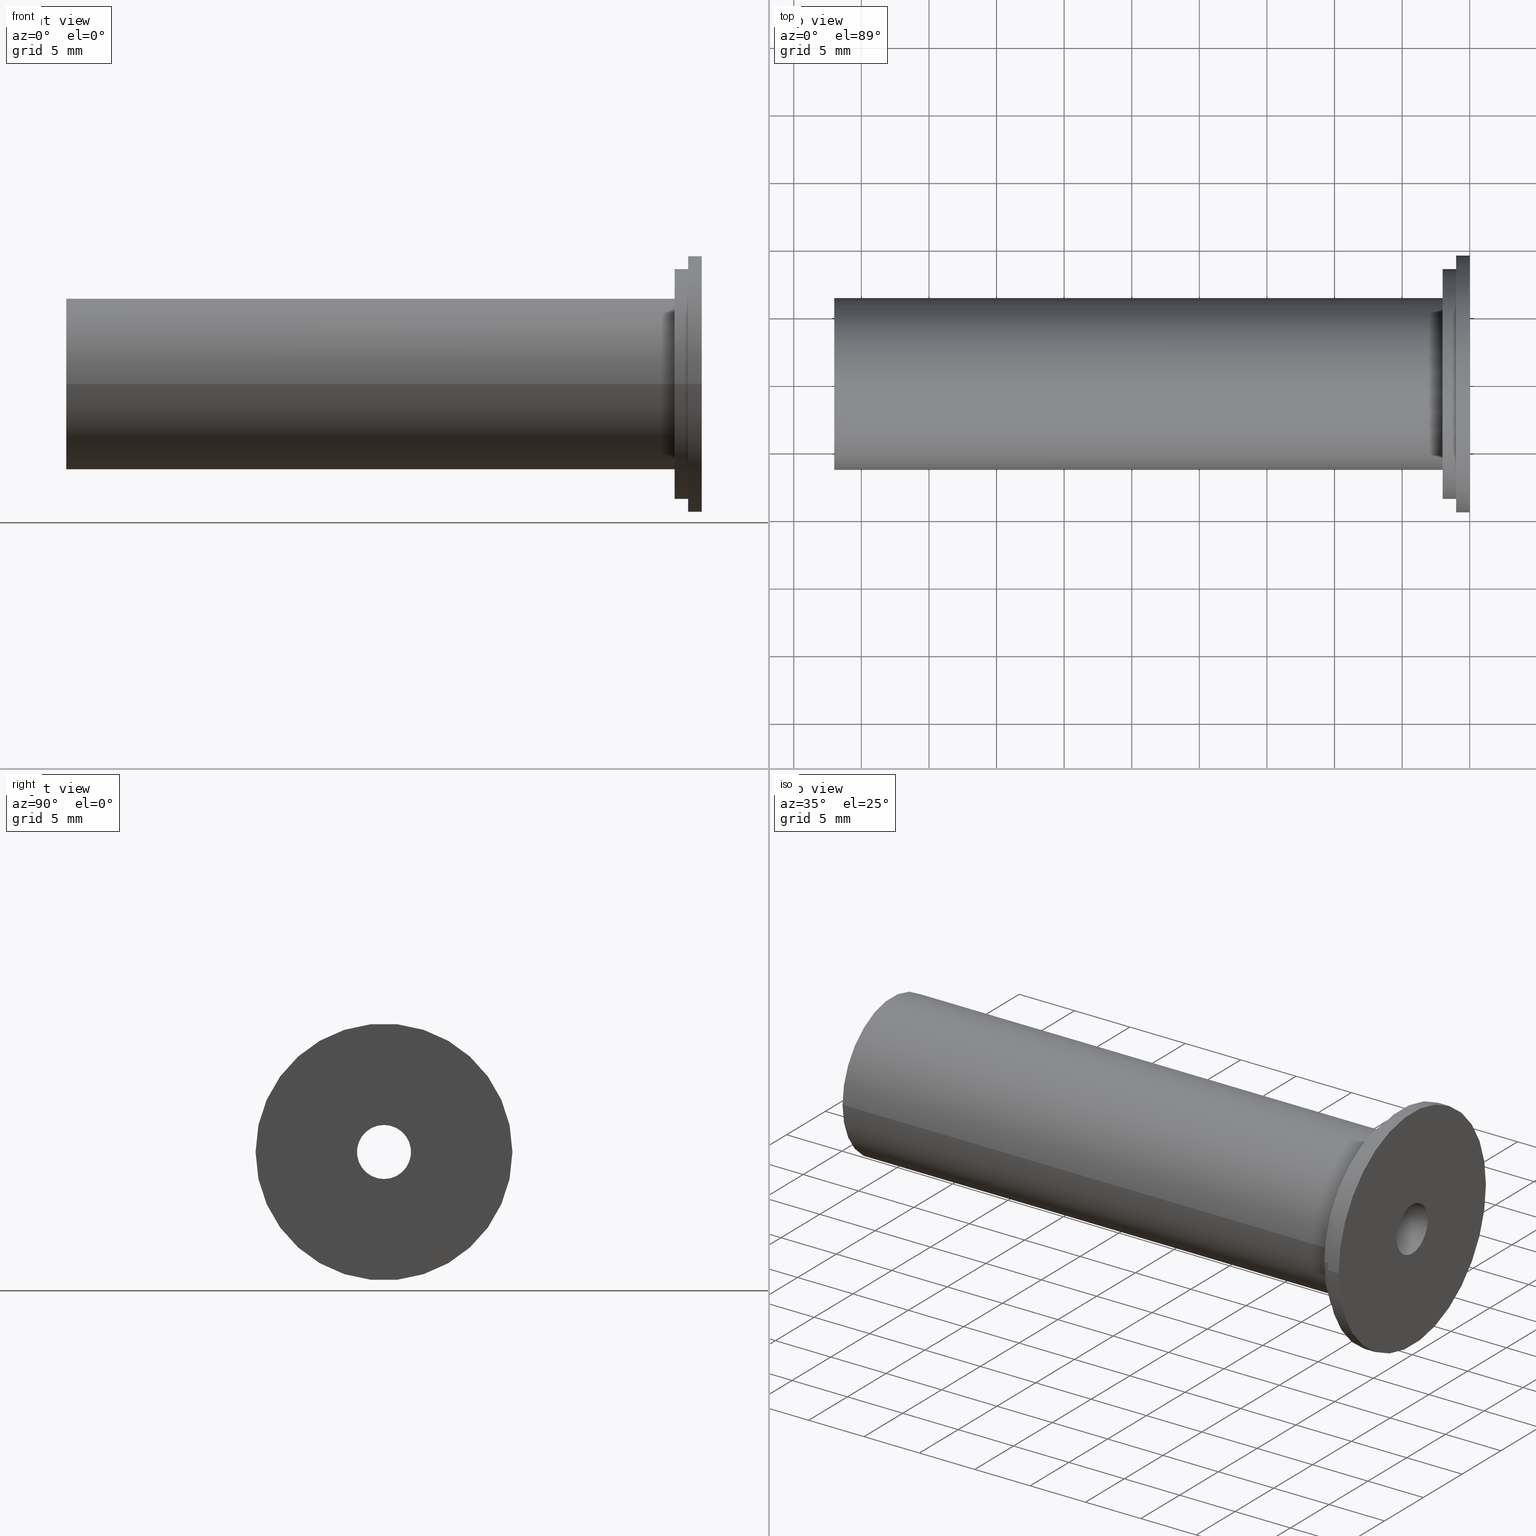
[diagram: canonical four-view strip — front | top / right | iso, engineering-drawing reading convention]
A machine part, canonical four-view strip (front | top / right | iso — engineering-drawing reading convention). The complete STEP part file that produces these views, byte-faithful:
ISO-10303-21;
HEADER;
/* Generated by software containing ST-Developer
 * from STEP Tools, Inc. (www.steptools.com) 
 */

FILE_DESCRIPTION(
/* description */ ('',
'CAx-IF Rec.Pracs.---Representation and Presentation of Product Manufa
cturing Information (PMI)---4.0---2014-10-13'),
/* implementation_level */ '2;1');

FILE_NAME(
/* name */ '101204.stp',
/* time_stamp */ '2025-05-12T15:04:00+09:00',
/* author */ ('eos'),
/* organization */ (''),
/* preprocessor_version */ 'ST-DEVELOPER v20',
/* originating_system */ 'Autodesk Inventor 2025',
/* authorisation */ '');

FILE_SCHEMA (('AP242_MANAGED_MODEL_BASED_3D_ENGINEERING_MIM_LF { 1 0 10303 442 1 1 4 }'));
ENDSEC;

DATA;
#10=CONSTRUCTIVE_GEOMETRY_REPRESENTATION_RELATIONSHIP('CGRR','None',#571,
#11);
#11=CONSTRUCTIVE_GEOMETRY_REPRESENTATION('Supplemental geometry',(#45,#46,
#47,#48,#49),#563);
#12=MECHANICAL_DESIGN_AND_DRAUGHTING_RELATIONSHIP('\X2\B4F1AC01D22CC601\X0\',
'',#27,#28);
#13=MECHANICAL_DESIGN_AND_DRAUGHTING_RELATIONSHIP('\X2\C815BA74\X0\','',
#29,#28);
#14=MECHANICAL_DESIGN_AND_DRAUGHTING_RELATIONSHIP('\X2\D3C9BA74\X0\','',
#30,#28);
#15=MECHANICAL_DESIGN_AND_DRAUGHTING_RELATIONSHIP('\X2\C6B0CE21BA74\X0\',
'',#31,#28);
#16=MAPPED_ITEM('',#21,#348);
#17=MAPPED_ITEM('',#22,#349);
#18=MAPPED_ITEM('',#23,#350);
#19=MAPPED_ITEM('',#24,#351);
#20=MAPPED_ITEM('',#25,#352);
#21=REPRESENTATION_MAP(#348,#26);
#22=REPRESENTATION_MAP(#349,#571);
#23=REPRESENTATION_MAP(#350,#26);
#24=REPRESENTATION_MAP(#351,#26);
#25=REPRESENTATION_MAP(#352,#26);
#26=ADVANCED_BREP_SHAPE_REPRESENTATION('\X2\B4F1AC01D22CC601\X0\',(#90),
#563);
#27=DRAUGHTING_MODEL('\X2\B4F1AC01D22CC601\X0\',(#16,#33),#563);
#28=DRAUGHTING_MODEL('',(#17,#349),#563);
#29=DRAUGHTING_MODEL('\X2\C815BA74\X0\',(#18,#34),#563);
#30=DRAUGHTING_MODEL('\X2\D3C9BA74\X0\',(#19,#35),#563);
#31=DRAUGHTING_MODEL('\X2\C6B0CE21BA74\X0\',(#20,#36),#563);
#32=MECHANICAL_DESIGN_GEOMETRIC_PRESENTATION_REPRESENTATION('',(#60,#61,
#62,#63,#64,#65,#66,#67,#68,#69,#70,#71,#72,#73,#74,#75,#76,#77,#78,#79,
#80,#81,#82,#83,#84,#85,#86,#87,#88),#564);
#33=CAMERA_MODEL_D3('\X2\B4F1AC01D22CC601\X0\',#340,#37);
#34=CAMERA_MODEL_D3('\X2\C815BA74\X0\',#342,#38);
#35=CAMERA_MODEL_D3('\X2\D3C9BA74\X0\',#344,#39);
#36=CAMERA_MODEL_D3('\X2\C6B0CE21BA74\X0\',#346,#40);
#37=VIEW_VOLUME(.PARALLEL.,#546,16.9875424688562,0.,.F.,0.,.F.,.F.,#41);
#38=VIEW_VOLUME(.PARALLEL.,#549,117.693146607172,0.,.F.,0.,.F.,.F.,#42);
#39=VIEW_VOLUME(.PARALLEL.,#552,117.693146607172,0.,.F.,0.,.F.,.F.,#43);
#40=VIEW_VOLUME(.PARALLEL.,#555,117.693146607172,0.,.F.,0.,.F.,.F.,#44);
#41=PLANAR_BOX('view window',27.8110236220472,20.,#341);
#42=PLANAR_BOX('view window',27.8110236220472,20.,#343);
#43=PLANAR_BOX('view window',27.8110236220472,20.,#345);
#44=PLANAR_BOX('view window',27.8110236220472,20.,#347);
#45=GEOMETRIC_CURVE_SET('\X2\C2A4CF00CE58\X0\1',(#51,#52,#53,#54,#55,#56,
#57,#58,#59,#530,#531));
#46=GEOMETRIC_CURVE_SET('\X2\C2A4CF00CE58\X0\2',(#169,#533,#534));
#47=GEOMETRIC_CURVE_SET('\X2\C2A4CF00CE58\X0\3',(#170,#536,#537));
#48=GEOMETRIC_CURVE_SET('\X2\C2A4CF00CE58\X0\4',(#171,#539,#540));
#49=GEOMETRIC_CURVE_SET('\X2\C2A4CF00CE58\X0\5',(#172,#542,#543));
#50=INVISIBILITY((#61,#62,#63,#64,#65,#66,#67,#68,#69,#70,#71,#72,#73,#74,
#75,#76,#77,#78,#79,#80,#81,#82,#83,#84,#85,#86,#87,#88));
#51=POLYLINE('',(#512,#513));
#52=POLYLINE('',(#514,#515));
#53=POLYLINE('',(#516,#517));
#54=POLYLINE('',(#518,#519));
#55=POLYLINE('',(#520,#521));
#56=POLYLINE('',(#522,#523));
#57=POLYLINE('',(#524,#525));
#58=POLYLINE('',(#526,#527));
#59=POLYLINE('',(#528,#529));
#60=STYLED_ITEM('',(#580),#90);
#61=STYLED_ITEM('',(#581),#51);
#62=STYLED_ITEM('',(#581),#52);
#63=STYLED_ITEM('',(#581),#53);
#64=STYLED_ITEM('',(#581),#54);
#65=STYLED_ITEM('',(#581),#55);
#66=STYLED_ITEM('',(#581),#56);
#67=STYLED_ITEM('',(#581),#57);
#68=STYLED_ITEM('',(#582),#58);
#69=STYLED_ITEM('',(#581),#59);
#70=STYLED_ITEM('',(#583),#530);
#71=STYLED_ITEM('',(#584),#531);
#72=STYLED_ITEM('',(#582),#169);
#73=STYLED_ITEM('',(#585),#533);
#74=STYLED_ITEM('',(#586),#534);
#75=STYLED_ITEM('',(#582),#170);
#76=STYLED_ITEM('',(#587),#536);
#77=STYLED_ITEM('',(#588),#537);
#78=STYLED_ITEM('',(#582),#171);
#79=STYLED_ITEM('',(#589),#539);
#80=STYLED_ITEM('',(#590),#540);
#81=STYLED_ITEM('',(#582),#172);
#82=STYLED_ITEM('',(#591),#542);
#83=STYLED_ITEM('',(#592),#543);
#84=STYLED_ITEM('',(#593),#45);
#85=STYLED_ITEM('',(#594),#46);
#86=STYLED_ITEM('',(#595),#47);
#87=STYLED_ITEM('',(#596),#48);
#88=STYLED_ITEM('',(#597),#49);
#89=STYLED_ITEM('',(#598),#17);
#90=MANIFOLD_SOLID_BREP('\X2\C194B9ACB4DC\X0\1',#284);
#91=FACE_BOUND('',#124,.T.);
#92=FACE_BOUND('',#127,.T.);
#93=FACE_BOUND('',#129,.T.);
#94=FACE_BOUND('',#132,.T.);
#95=PLANE('',#323);
#96=PLANE('',#328);
#97=PLANE('',#329);
#98=PLANE('',#333);
#99=CONICAL_SURFACE('',#311,1.5,0.785398163397448);
#100=CONICAL_SURFACE('',#315,2.4,0.785398163397448);
#101=CONICAL_SURFACE('',#319,2.5,0.785398163397448);
#102=FACE_OUTER_BOUND('',#116,.T.);
#103=FACE_OUTER_BOUND('',#117,.T.);
#104=FACE_OUTER_BOUND('',#118,.T.);
#105=FACE_OUTER_BOUND('',#119,.T.);
#106=FACE_OUTER_BOUND('',#120,.T.);
#107=FACE_OUTER_BOUND('',#121,.T.);
#108=FACE_OUTER_BOUND('',#122,.T.);
#109=FACE_OUTER_BOUND('',#123,.T.);
#110=FACE_OUTER_BOUND('',#125,.T.);
#111=FACE_OUTER_BOUND('',#126,.T.);
#112=FACE_OUTER_BOUND('',#128,.T.);
#113=FACE_OUTER_BOUND('',#130,.T.);
#114=FACE_OUTER_BOUND('',#131,.T.);
#115=FACE_OUTER_BOUND('',#133,.T.);
#116=EDGE_LOOP('',(#213,#214,#215,#216,#217));
#117=EDGE_LOOP('',(#218,#219,#220,#221,#222));
#118=EDGE_LOOP('',(#223,#224,#225,#226));
#119=EDGE_LOOP('',(#227,#228,#229,#230));
#120=EDGE_LOOP('',(#231,#232,#233,#234));
#121=EDGE_LOOP('',(#235,#236,#237,#238));
#122=EDGE_LOOP('',(#239,#240,#241,#242));
#123=EDGE_LOOP('',(#243));
#124=EDGE_LOOP('',(#244));
#125=EDGE_LOOP('',(#245,#246,#247,#248));
#126=EDGE_LOOP('',(#249));
#127=EDGE_LOOP('',(#250));
#128=EDGE_LOOP('',(#251));
#129=EDGE_LOOP('',(#252));
#130=EDGE_LOOP('',(#253,#254,#255,#256));
#131=EDGE_LOOP('',(#257));
#132=EDGE_LOOP('',(#258));
#133=EDGE_LOOP('',(#259,#260,#261,#262));
#134=LINE('',#462,#144);
#135=LINE('',#469,#145);
#136=LINE('',#473,#146);
#137=LINE('',#477,#147);
#138=LINE('',#481,#148);
#139=LINE('',#485,#149);
#140=LINE('',#489,#150);
#141=LINE('',#498,#151);
#142=LINE('',#506,#152);
#143=LINE('',#511,#153);
#144=VECTOR('',#359,2.);
#145=VECTOR('',#368,1.5);
#146=VECTOR('',#373,3.);
#147=VECTOR('',#378,2.4);
#148=VECTOR('',#383,4.8);
#149=VECTOR('',#388,2.5);
#150=VECTOR('',#393,5.);
#151=VECTOR('',#404,9.5);
#152=VECTOR('',#415,6.35);
#153=VECTOR('',#422,8.5);
#154=CIRCLE('',#308,2.);
#155=CIRCLE('',#309,2.);
#156=CIRCLE('',#310,2.);
#157=CIRCLE('',#312,3.);
#158=CIRCLE('',#314,3.);
#159=CIRCLE('',#316,4.8);
#160=CIRCLE('',#318,4.8);
#161=CIRCLE('',#320,5.);
#162=CIRCLE('',#322,5.);
#163=CIRCLE('',#324,9.5);
#164=CIRCLE('',#325,8.5);
#165=CIRCLE('',#327,9.5);
#166=CIRCLE('',#330,6.35);
#167=CIRCLE('',#332,6.35);
#168=CIRCLE('',#334,8.5);
#169=CIRCLE('',#336,6.35);
#170=CIRCLE('',#337,5.);
#171=CIRCLE('',#338,6.35);
#172=CIRCLE('',#339,5.);
#173=VERTEX_POINT('',#459);
#174=VERTEX_POINT('',#461);
#175=VERTEX_POINT('',#463);
#176=VERTEX_POINT('',#467);
#177=VERTEX_POINT('',#471);
#178=VERTEX_POINT('',#475);
#179=VERTEX_POINT('',#479);
#180=VERTEX_POINT('',#483);
#181=VERTEX_POINT('',#487);
#182=VERTEX_POINT('',#491);
#183=VERTEX_POINT('',#493);
#184=VERTEX_POINT('',#496);
#185=VERTEX_POINT('',#501);
#186=VERTEX_POINT('',#504);
#187=VERTEX_POINT('',#508);
#188=EDGE_CURVE('',#173,#173,#154,.T.);
#189=EDGE_CURVE('',#173,#174,#134,.T.);
#190=EDGE_CURVE('',#175,#174,#155,.T.);
#191=EDGE_CURVE('',#174,#175,#156,.T.);
#192=EDGE_CURVE('',#176,#176,#157,.T.);
#193=EDGE_CURVE('',#176,#175,#135,.T.);
#194=EDGE_CURVE('',#177,#177,#158,.T.);
#195=EDGE_CURVE('',#177,#176,#136,.T.);
#196=EDGE_CURVE('',#178,#178,#159,.T.);
#197=EDGE_CURVE('',#178,#177,#137,.T.);
#198=EDGE_CURVE('',#179,#179,#160,.T.);
#199=EDGE_CURVE('',#179,#178,#138,.T.);
#200=EDGE_CURVE('',#180,#180,#161,.T.);
#201=EDGE_CURVE('',#180,#179,#139,.T.);
#202=EDGE_CURVE('',#181,#181,#162,.T.);
#203=EDGE_CURVE('',#181,#180,#140,.T.);
#204=EDGE_CURVE('',#182,#182,#163,.T.);
#205=EDGE_CURVE('',#183,#183,#164,.T.);
#206=EDGE_CURVE('',#184,#184,#165,.T.);
#207=EDGE_CURVE('',#184,#182,#141,.T.);
#208=EDGE_CURVE('',#185,#185,#166,.T.);
#209=EDGE_CURVE('',#186,#186,#167,.T.);
#210=EDGE_CURVE('',#186,#185,#142,.T.);
#211=EDGE_CURVE('',#187,#187,#168,.T.);
#212=EDGE_CURVE('',#183,#187,#143,.T.);
#213=ORIENTED_EDGE('',*,*,#188,.F.);
#214=ORIENTED_EDGE('',*,*,#189,.T.);
#215=ORIENTED_EDGE('',*,*,#190,.F.);
#216=ORIENTED_EDGE('',*,*,#191,.F.);
#217=ORIENTED_EDGE('',*,*,#189,.F.);
#218=ORIENTED_EDGE('',*,*,#192,.T.);
#219=ORIENTED_EDGE('',*,*,#193,.T.);
#220=ORIENTED_EDGE('',*,*,#190,.T.);
#221=ORIENTED_EDGE('',*,*,#191,.T.);
#222=ORIENTED_EDGE('',*,*,#193,.F.);
#223=ORIENTED_EDGE('',*,*,#194,.F.);
#224=ORIENTED_EDGE('',*,*,#195,.T.);
#225=ORIENTED_EDGE('',*,*,#192,.F.);
#226=ORIENTED_EDGE('',*,*,#195,.F.);
#227=ORIENTED_EDGE('',*,*,#196,.T.);
#228=ORIENTED_EDGE('',*,*,#197,.T.);
#229=ORIENTED_EDGE('',*,*,#194,.T.);
#230=ORIENTED_EDGE('',*,*,#197,.F.);
#231=ORIENTED_EDGE('',*,*,#198,.F.);
#232=ORIENTED_EDGE('',*,*,#199,.T.);
#233=ORIENTED_EDGE('',*,*,#196,.F.);
#234=ORIENTED_EDGE('',*,*,#199,.F.);
#235=ORIENTED_EDGE('',*,*,#200,.T.);
#236=ORIENTED_EDGE('',*,*,#201,.T.);
#237=ORIENTED_EDGE('',*,*,#198,.T.);
#238=ORIENTED_EDGE('',*,*,#201,.F.);
#239=ORIENTED_EDGE('',*,*,#202,.F.);
#240=ORIENTED_EDGE('',*,*,#203,.T.);
#241=ORIENTED_EDGE('',*,*,#200,.F.);
#242=ORIENTED_EDGE('',*,*,#203,.F.);
#243=ORIENTED_EDGE('',*,*,#204,.F.);
#244=ORIENTED_EDGE('',*,*,#205,.T.);
#245=ORIENTED_EDGE('',*,*,#206,.F.);
#246=ORIENTED_EDGE('',*,*,#207,.T.);
#247=ORIENTED_EDGE('',*,*,#204,.T.);
#248=ORIENTED_EDGE('',*,*,#207,.F.);
#249=ORIENTED_EDGE('',*,*,#206,.T.);
#250=ORIENTED_EDGE('',*,*,#188,.T.);
#251=ORIENTED_EDGE('',*,*,#208,.F.);
#252=ORIENTED_EDGE('',*,*,#202,.T.);
#253=ORIENTED_EDGE('',*,*,#209,.F.);
#254=ORIENTED_EDGE('',*,*,#210,.T.);
#255=ORIENTED_EDGE('',*,*,#208,.T.);
#256=ORIENTED_EDGE('',*,*,#210,.F.);
#257=ORIENTED_EDGE('',*,*,#211,.F.);
#258=ORIENTED_EDGE('',*,*,#209,.T.);
#259=ORIENTED_EDGE('',*,*,#205,.F.);
#260=ORIENTED_EDGE('',*,*,#212,.T.);
#261=ORIENTED_EDGE('',*,*,#211,.T.);
#262=ORIENTED_EDGE('',*,*,#212,.F.);
#263=CYLINDRICAL_SURFACE('',#307,2.);
#264=CYLINDRICAL_SURFACE('',#313,3.);
#265=CYLINDRICAL_SURFACE('',#317,4.8);
#266=CYLINDRICAL_SURFACE('',#321,5.);
#267=CYLINDRICAL_SURFACE('',#326,9.5);
#268=CYLINDRICAL_SURFACE('',#331,6.35);
#269=CYLINDRICAL_SURFACE('',#335,8.5);
#270=ADVANCED_FACE('',(#102),#263,.F.);
#271=ADVANCED_FACE('',(#103),#99,.F.);
#272=ADVANCED_FACE('',(#104),#264,.F.);
#273=ADVANCED_FACE('',(#105),#100,.F.);
#274=ADVANCED_FACE('',(#106),#265,.F.);
#275=ADVANCED_FACE('',(#107),#101,.F.);
#276=ADVANCED_FACE('',(#108),#266,.F.);
#277=ADVANCED_FACE('',(#109,#91),#95,.T.);
#278=ADVANCED_FACE('',(#110),#267,.T.);
#279=ADVANCED_FACE('',(#111,#92),#96,.T.);
#280=ADVANCED_FACE('',(#112,#93),#97,.T.);
#281=ADVANCED_FACE('',(#113),#268,.T.);
#282=ADVANCED_FACE('',(#114,#94),#98,.T.);
#283=ADVANCED_FACE('',(#115),#269,.T.);
#284=CLOSED_SHELL('',(#270,#271,#272,#273,#274,#275,#276,#277,#278,#279,
#280,#281,#282,#283));
#285=DERIVED_UNIT_ELEMENT(#288,1.);
#286=DERIVED_UNIT_ELEMENT(#566,-3.);
#287=DIMENSIONAL_EXPONENTS(0.,1.,0.,0.,0.,0.,0.);
#288=(
CONVERSION_BASED_UNIT('gram',#290)
MASS_UNIT()
NAMED_UNIT(#287)
);
#289=(
MASS_UNIT()
NAMED_UNIT(*)
SI_UNIT(.KILO.,.GRAM.)
);
#290=MASS_MEASURE_WITH_UNIT(MASS_MEASURE(0.001),#289);
#291=DERIVED_UNIT((#285,#286));
#292=MEASURE_REPRESENTATION_ITEM('density measure',
POSITIVE_RATIO_MEASURE(1.),#291);
#293=PROPERTY_DEFINITION_REPRESENTATION(#298,#295);
#294=PROPERTY_DEFINITION_REPRESENTATION(#299,#296);
#295=REPRESENTATION('material name',(#297),#563);
#296=REPRESENTATION('density',(#292),#563);
#297=DESCRIPTIVE_REPRESENTATION_ITEM('\X2\C77CBC18\X0\','\X2\C77CBC18\X0\');
#298=PROPERTY_DEFINITION('material property','material name',#573);
#299=PROPERTY_DEFINITION('material property','density of part',#573);
#300=DATE_TIME_ROLE('creation_date');
#301=APPLIED_DATE_AND_TIME_ASSIGNMENT(#302,#300,(#573));
#302=DATE_AND_TIME(#303,#304);
#303=CALENDAR_DATE(2023,2,2);
#304=LOCAL_TIME(0,0,0.,#305);
#305=COORDINATED_UNIVERSAL_TIME_OFFSET(0,0,.BEHIND.);
#306=AXIS2_PLACEMENT_3D('',#457,#353,#354);
#307=AXIS2_PLACEMENT_3D('',#458,#355,#356);
#308=AXIS2_PLACEMENT_3D('',#460,#357,#358);
#309=AXIS2_PLACEMENT_3D('',#464,#360,#361);
#310=AXIS2_PLACEMENT_3D('',#465,#362,#363);
#311=AXIS2_PLACEMENT_3D('',#466,#364,#365);
#312=AXIS2_PLACEMENT_3D('',#468,#366,#367);
#313=AXIS2_PLACEMENT_3D('',#470,#369,#370);
#314=AXIS2_PLACEMENT_3D('',#472,#371,#372);
#315=AXIS2_PLACEMENT_3D('',#474,#374,#375);
#316=AXIS2_PLACEMENT_3D('',#476,#376,#377);
#317=AXIS2_PLACEMENT_3D('',#478,#379,#380);
#318=AXIS2_PLACEMENT_3D('',#480,#381,#382);
#319=AXIS2_PLACEMENT_3D('',#482,#384,#385);
#320=AXIS2_PLACEMENT_3D('',#484,#386,#387);
#321=AXIS2_PLACEMENT_3D('',#486,#389,#390);
#322=AXIS2_PLACEMENT_3D('',#488,#391,#392);
#323=AXIS2_PLACEMENT_3D('',#490,#394,#395);
#324=AXIS2_PLACEMENT_3D('',#492,#396,#397);
#325=AXIS2_PLACEMENT_3D('',#494,#398,#399);
#326=AXIS2_PLACEMENT_3D('',#495,#400,#401);
#327=AXIS2_PLACEMENT_3D('',#497,#402,#403);
#328=AXIS2_PLACEMENT_3D('',#499,#405,#406);
#329=AXIS2_PLACEMENT_3D('',#500,#407,#408);
#330=AXIS2_PLACEMENT_3D('',#502,#409,#410);
#331=AXIS2_PLACEMENT_3D('',#503,#411,#412);
#332=AXIS2_PLACEMENT_3D('',#505,#413,#414);
#333=AXIS2_PLACEMENT_3D('',#507,#416,#417);
#334=AXIS2_PLACEMENT_3D('',#509,#418,#419);
#335=AXIS2_PLACEMENT_3D('',#510,#420,#421);
#336=AXIS2_PLACEMENT_3D('',#532,#423,#424);
#337=AXIS2_PLACEMENT_3D('',#535,#425,#426);
#338=AXIS2_PLACEMENT_3D('',#538,#427,#428);
#339=AXIS2_PLACEMENT_3D('',#541,#429,#430);
#340=AXIS2_PLACEMENT_3D('view reference',#544,#431,#432);
#341=AXIS2_PLACEMENT_3D('view window',#545,#433,#434);
#342=AXIS2_PLACEMENT_3D('view reference',#547,#435,#436);
#343=AXIS2_PLACEMENT_3D('view window',#548,#437,#438);
#344=AXIS2_PLACEMENT_3D('view reference',#550,#439,#440);
#345=AXIS2_PLACEMENT_3D('view window',#551,#441,#442);
#346=AXIS2_PLACEMENT_3D('view reference',#553,#443,#444);
#347=AXIS2_PLACEMENT_3D('view window',#554,#445,#446);
#348=AXIS2_PLACEMENT_3D('',#556,#447,#448);
#349=AXIS2_PLACEMENT_3D('',#557,#449,#450);
#350=AXIS2_PLACEMENT_3D('',#558,#451,#452);
#351=AXIS2_PLACEMENT_3D('',#559,#453,#454);
#352=AXIS2_PLACEMENT_3D('',#560,#455,#456);
#353=DIRECTION('axis',(0.,0.,1.));
#354=DIRECTION('refdir',(1.,0.,0.));
#355=DIRECTION('center_axis',(1.,0.,0.));
#356=DIRECTION('ref_axis',(0.,0.,-1.));
#357=DIRECTION('center_axis',(-1.,0.,0.));
#358=DIRECTION('ref_axis',(0.,0.,-1.));
#359=DIRECTION('',(-1.,0.,0.));
#360=DIRECTION('center_axis',(1.,0.,0.));
#361=DIRECTION('ref_axis',(0.,0.,-1.));
#362=DIRECTION('center_axis',(1.,0.,0.));
#363=DIRECTION('ref_axis',(0.,0.,-1.));
#364=DIRECTION('center_axis',(-1.,0.,0.));
#365=DIRECTION('ref_axis',(0.,0.,1.));
#366=DIRECTION('center_axis',(-1.,0.,0.));
#367=DIRECTION('ref_axis',(0.,0.,1.));
#368=DIRECTION('',(0.707106781186548,8.65956056235493E-17,0.707106781186547));
#369=DIRECTION('center_axis',(-1.,0.,0.));
#370=DIRECTION('ref_axis',(0.,0.,1.));
#371=DIRECTION('center_axis',(1.,0.,0.));
#372=DIRECTION('ref_axis',(0.,0.,1.));
#373=DIRECTION('',(1.,0.,0.));
#374=DIRECTION('center_axis',(-1.,0.,0.));
#375=DIRECTION('ref_axis',(0.,0.,1.));
#376=DIRECTION('center_axis',(-1.,0.,0.));
#377=DIRECTION('ref_axis',(0.,0.,1.));
#378=DIRECTION('',(0.707106781186548,8.65956056235493E-17,0.707106781186547));
#379=DIRECTION('center_axis',(-1.,0.,0.));
#380=DIRECTION('ref_axis',(0.,0.,1.));
#381=DIRECTION('center_axis',(1.,0.,0.));
#382=DIRECTION('ref_axis',(0.,0.,1.));
#383=DIRECTION('',(1.,0.,0.));
#384=DIRECTION('center_axis',(-1.,0.,0.));
#385=DIRECTION('ref_axis',(0.,0.,1.));
#386=DIRECTION('center_axis',(-1.,0.,0.));
#387=DIRECTION('ref_axis',(0.,0.,1.));
#388=DIRECTION('',(0.707106781186548,8.65956056235493E-17,0.707106781186547));
#389=DIRECTION('center_axis',(-1.,0.,0.));
#390=DIRECTION('ref_axis',(0.,0.,1.));
#391=DIRECTION('center_axis',(1.,0.,0.));
#392=DIRECTION('ref_axis',(0.,0.,1.));
#393=DIRECTION('',(1.,0.,0.));
#394=DIRECTION('center_axis',(-1.,0.,0.));
#395=DIRECTION('ref_axis',(0.,0.,1.));
#396=DIRECTION('center_axis',(1.,0.,0.));
#397=DIRECTION('ref_axis',(0.,0.,-1.));
#398=DIRECTION('center_axis',(1.,0.,0.));
#399=DIRECTION('ref_axis',(0.,0.,-1.));
#400=DIRECTION('center_axis',(1.,0.,0.));
#401=DIRECTION('ref_axis',(0.,1.,0.));
#402=DIRECTION('center_axis',(1.,0.,0.));
#403=DIRECTION('ref_axis',(0.,0.,-1.));
#404=DIRECTION('',(-1.,0.,0.));
#405=DIRECTION('center_axis',(1.,0.,0.));
#406=DIRECTION('ref_axis',(0.,0.,-1.));
#407=DIRECTION('center_axis',(-1.,0.,0.));
#408=DIRECTION('ref_axis',(0.,0.,1.));
#409=DIRECTION('center_axis',(1.,0.,0.));
#410=DIRECTION('ref_axis',(0.,0.,-1.));
#411=DIRECTION('center_axis',(1.,0.,0.));
#412=DIRECTION('ref_axis',(0.,1.,0.));
#413=DIRECTION('center_axis',(1.,0.,0.));
#414=DIRECTION('ref_axis',(0.,0.,-1.));
#415=DIRECTION('',(-1.,0.,0.));
#416=DIRECTION('center_axis',(-1.,0.,0.));
#417=DIRECTION('ref_axis',(0.,0.,1.));
#418=DIRECTION('center_axis',(1.,0.,0.));
#419=DIRECTION('ref_axis',(0.,0.,-1.));
#420=DIRECTION('center_axis',(1.,0.,0.));
#421=DIRECTION('ref_axis',(0.,1.,0.));
#422=DIRECTION('',(-1.,0.,0.));
#423=DIRECTION('center_axis',(-1.,0.,0.));
#424=DIRECTION('ref_axis',(0.,0.,1.));
#425=DIRECTION('center_axis',(-1.,0.,0.));
#426=DIRECTION('ref_axis',(0.,0.,1.));
#427=DIRECTION('center_axis',(1.,0.,0.));
#428=DIRECTION('ref_axis',(0.,0.,-1.));
#429=DIRECTION('center_axis',(-1.,0.,0.));
#430=DIRECTION('ref_axis',(0.,0.,1.));
#431=DIRECTION('center_axis',(-0.577350269189626,0.577350269189626,-0.577350269189626));
#432=DIRECTION('ref_axis',(-0.707106781186548,-0.707106781186548,0.));
#433=DIRECTION('center_axis',(0.,0.,1.));
#434=DIRECTION('ref_axis',(1.,0.,0.));
#435=DIRECTION('center_axis',(-2.22044604925031E-16,0.,-1.));
#436=DIRECTION('ref_axis',(-1.,0.,2.22044604925031E-16));
#437=DIRECTION('center_axis',(0.,0.,1.));
#438=DIRECTION('ref_axis',(1.,0.,0.));
#439=DIRECTION('center_axis',(0.,-1.,0.));
#440=DIRECTION('ref_axis',(-1.,0.,0.));
#441=DIRECTION('center_axis',(0.,0.,1.));
#442=DIRECTION('ref_axis',(1.,0.,0.));
#443=DIRECTION('center_axis',(-1.,0.,0.));
#444=DIRECTION('ref_axis',(0.,0.,1.));
#445=DIRECTION('center_axis',(0.,0.,1.));
#446=DIRECTION('ref_axis',(1.,0.,0.));
#447=DIRECTION('center_axis',(0.,0.,1.));
#448=DIRECTION('ref_axis',(1.,0.,0.));
#449=DIRECTION('center_axis',(0.,0.,1.));
#450=DIRECTION('ref_axis',(1.,0.,0.));
#451=DIRECTION('center_axis',(0.,0.,1.));
#452=DIRECTION('ref_axis',(1.,0.,0.));
#453=DIRECTION('center_axis',(0.,0.,1.));
#454=DIRECTION('ref_axis',(1.,0.,0.));
#455=DIRECTION('center_axis',(0.,0.,1.));
#456=DIRECTION('ref_axis',(1.,0.,0.));
#457=CARTESIAN_POINT('',(0.,0.,0.));
#458=CARTESIAN_POINT('Origin',(-54.1387107345567,0.,0.));
#459=CARTESIAN_POINT('',(1.77635683940025E-14,-2.44929359829471E-16,2.));
#460=CARTESIAN_POINT('Origin',(1.77635683940025E-14,0.,0.));
#461=CARTESIAN_POINT('',(-16.5,-2.44929359829471E-16,2.));
#462=CARTESIAN_POINT('',(-54.1387107345567,-2.44929359829471E-16,2.));
#463=CARTESIAN_POINT('',(-16.5,-2.44929359829471E-16,-2.));
#464=CARTESIAN_POINT('Origin',(-16.5,0.,0.));
#465=CARTESIAN_POINT('Origin',(-16.5,0.,0.));
#466=CARTESIAN_POINT('Origin',(-16.,0.,0.));
#467=CARTESIAN_POINT('',(-17.5,-3.67394039744206E-16,-3.));
#468=CARTESIAN_POINT('Origin',(-17.5,0.,0.));
#469=CARTESIAN_POINT('',(-16.,-1.83697019872103E-16,-1.5));
#470=CARTESIAN_POINT('Origin',(-32.25,0.,0.));
#471=CARTESIAN_POINT('',(-24.,3.67394039744206E-16,-3.));
#472=CARTESIAN_POINT('Origin',(-24.,0.,0.));
#473=CARTESIAN_POINT('',(-32.25,-3.67394039744206E-16,-3.));
#474=CARTESIAN_POINT('Origin',(-23.4,0.,0.));
#475=CARTESIAN_POINT('',(-25.8,-5.8783046359073E-16,-4.8));
#476=CARTESIAN_POINT('Origin',(-25.8,0.,0.));
#477=CARTESIAN_POINT('',(-23.4,-2.93915231795365E-16,-2.4));
#478=CARTESIAN_POINT('Origin',(-36.4,0.,0.));
#479=CARTESIAN_POINT('',(-32.3,5.87830463590729E-16,-4.8));
#480=CARTESIAN_POINT('Origin',(-32.3,0.,0.));
#481=CARTESIAN_POINT('',(-36.4,-5.87830463590729E-16,-4.8));
#482=CARTESIAN_POINT('Origin',(-30.,0.,0.));
#483=CARTESIAN_POINT('',(-32.5,-6.12323399573677E-16,-5.));
#484=CARTESIAN_POINT('Origin',(-32.5,0.,0.));
#485=CARTESIAN_POINT('',(-30.,-3.06161699786838E-16,-2.5));
#486=CARTESIAN_POINT('Origin',(-39.75,0.,0.));
#487=CARTESIAN_POINT('',(-47.,-6.12323399573677E-16,-5.));
#488=CARTESIAN_POINT('Origin',(-47.,0.,0.));
#489=CARTESIAN_POINT('',(-39.75,-6.12323399573677E-16,-5.));
#490=CARTESIAN_POINT('Origin',(-0.999999999999994,9.5,0.));
#491=CARTESIAN_POINT('',(-0.999999999999994,-9.5,-1.16341445918999E-15));
#492=CARTESIAN_POINT('Origin',(-0.999999999999994,0.,0.));
#493=CARTESIAN_POINT('',(-0.999999999999994,-8.5,-1.04094977927525E-15));
#494=CARTESIAN_POINT('Origin',(-0.999999999999994,0.,0.));
#495=CARTESIAN_POINT('Origin',(-0.499999999999993,0.,0.));
#496=CARTESIAN_POINT('',(7.49400541621981E-15,-9.5,-1.16341445918999E-15));
#497=CARTESIAN_POINT('Origin',(7.49400541621981E-15,0.,0.));
#498=CARTESIAN_POINT('',(-0.499999999999993,-9.5,-1.16341445918999E-15));
#499=CARTESIAN_POINT('Origin',(1.33226762955019E-14,0.,0.));
#500=CARTESIAN_POINT('Origin',(-47.,6.35,0.));
#501=CARTESIAN_POINT('',(-47.,-6.35,-7.7765071745857E-16));
#502=CARTESIAN_POINT('Origin',(-47.,0.,0.));
#503=CARTESIAN_POINT('Origin',(-24.5,0.,0.));
#504=CARTESIAN_POINT('',(-2.,-6.35,-7.7765071745857E-16));
#505=CARTESIAN_POINT('Origin',(-2.,0.,0.));
#506=CARTESIAN_POINT('',(-24.5,-6.35,-7.7765071745857E-16));
#507=CARTESIAN_POINT('Origin',(-2.,8.5,0.));
#508=CARTESIAN_POINT('',(-2.,-8.5,-1.04094977927525E-15));
#509=CARTESIAN_POINT('Origin',(-2.,0.,0.));
#510=CARTESIAN_POINT('Origin',(-1.5,0.,0.));
#511=CARTESIAN_POINT('',(-1.5,-8.5,-1.04094977927525E-15));
#512=CARTESIAN_POINT('polyline point',(-47.,0.,0.));
#513=CARTESIAN_POINT('polyline point',(-47.,6.35,0.));
#514=CARTESIAN_POINT('polyline point',(-47.,6.35,0.));
#515=CARTESIAN_POINT('polyline point',(-2.,6.35,0.));
#516=CARTESIAN_POINT('polyline point',(-2.,6.35,0.));
#517=CARTESIAN_POINT('polyline point',(-2.,8.5,0.));
#518=CARTESIAN_POINT('polyline point',(-2.,8.5,0.));
#519=CARTESIAN_POINT('polyline point',(-0.999999999999994,8.5,0.));
#520=CARTESIAN_POINT('polyline point',(-0.999999999999994,8.5,0.));
#521=CARTESIAN_POINT('polyline point',(-0.999999999999994,9.5,0.));
#522=CARTESIAN_POINT('polyline point',(-0.999999999999994,9.5,0.));
#523=CARTESIAN_POINT('polyline point',(7.52761651198729E-15,9.5,0.));
#524=CARTESIAN_POINT('polyline point',(7.52761651198729E-15,9.5,0.));
#525=CARTESIAN_POINT('polyline point',(1.33226762955019E-14,0.,0.));
#526=CARTESIAN_POINT('polyline point',(0.,-1.9,0.));
#527=CARTESIAN_POINT('polyline point',(0.,11.4,0.));
#528=CARTESIAN_POINT('polyline point',(-47.,0.,0.));
#529=CARTESIAN_POINT('polyline point',(1.33226762955019E-14,0.,0.));
#530=CARTESIAN_POINT('',(-47.,0.,0.));
#531=CARTESIAN_POINT('',(1.33226762955019E-14,0.,0.));
#532=CARTESIAN_POINT('Origin',(-47.,0.,0.));
#533=CARTESIAN_POINT('',(-47.,0.,0.));
#534=CARTESIAN_POINT('',(-47.,0.,0.));
#535=CARTESIAN_POINT('Origin',(-47.,0.,0.));
#536=CARTESIAN_POINT('',(-47.,0.,0.));
#537=CARTESIAN_POINT('',(-47.,0.,0.));
#538=CARTESIAN_POINT('Origin',(1.33226762955019E-14,0.,0.));
#539=CARTESIAN_POINT('',(1.33226762955019E-14,0.,0.));
#540=CARTESIAN_POINT('',(1.33226762955019E-14,0.,0.));
#541=CARTESIAN_POINT('Origin',(-47.,0.,0.));
#542=CARTESIAN_POINT('',(-47.,0.,0.));
#543=CARTESIAN_POINT('',(-47.,0.,0.));
#544=CARTESIAN_POINT('Origin',(9.80776221726431,-9.80776221726431,9.80776221726431));
#545=CARTESIAN_POINT('Origin',(-13.9055118110236,-10.,16.9875424688562));
#546=CARTESIAN_POINT('',(0.,0.,0.));
#547=CARTESIAN_POINT('Origin',(2.61331282407732E-14,0.,117.693146607172));
#548=CARTESIAN_POINT('Origin',(-13.9055118110236,-10.,117.693146607172));
#549=CARTESIAN_POINT('',(0.,0.,0.));
#550=CARTESIAN_POINT('Origin',(0.,117.693146607172,0.));
#551=CARTESIAN_POINT('Origin',(-13.9055118110236,-10.,117.693146607172));
#552=CARTESIAN_POINT('',(0.,0.,0.));
#553=CARTESIAN_POINT('Origin',(117.693146607172,0.,0.));
#554=CARTESIAN_POINT('Origin',(-13.9055118110236,-10.,117.693146607172));
#555=CARTESIAN_POINT('',(0.,0.,0.));
#556=CARTESIAN_POINT('Origin',(0.,0.,0.));
#557=CARTESIAN_POINT('Origin',(0.,0.,0.));
#558=CARTESIAN_POINT('Origin',(0.,0.,0.));
#559=CARTESIAN_POINT('Origin',(0.,0.,0.));
#560=CARTESIAN_POINT('Origin',(0.,0.,0.));
#561=UNCERTAINTY_MEASURE_WITH_UNIT(LENGTH_MEASURE(0.01),#565,
'DISTANCE_ACCURACY_VALUE',
'Maximum model space distance between geometric entities at asserted c
onnectivities');
#562=UNCERTAINTY_MEASURE_WITH_UNIT(LENGTH_MEASURE(0.01),#565,
'DISTANCE_ACCURACY_VALUE',
'Maximum model space distance between geometric entities at asserted c
onnectivities');
#563=(
GEOMETRIC_REPRESENTATION_CONTEXT(3)
GLOBAL_UNCERTAINTY_ASSIGNED_CONTEXT((#561))
GLOBAL_UNIT_ASSIGNED_CONTEXT((#565,#567,#568))
REPRESENTATION_CONTEXT('','3D')
);
#564=(
GEOMETRIC_REPRESENTATION_CONTEXT(3)
GLOBAL_UNCERTAINTY_ASSIGNED_CONTEXT((#562))
GLOBAL_UNIT_ASSIGNED_CONTEXT((#565,#567,#568))
REPRESENTATION_CONTEXT('','3D')
);
#565=(
LENGTH_UNIT()
NAMED_UNIT(*)
SI_UNIT(.MILLI.,.METRE.)
);
#566=(
LENGTH_UNIT()
NAMED_UNIT(*)
SI_UNIT(.CENTI.,.METRE.)
);
#567=(
NAMED_UNIT(*)
PLANE_ANGLE_UNIT()
SI_UNIT($,.RADIAN.)
);
#568=(
NAMED_UNIT(*)
SI_UNIT($,.STERADIAN.)
SOLID_ANGLE_UNIT()
);
#569=SHAPE_DEFINITION_REPRESENTATION(#570,#571);
#570=PRODUCT_DEFINITION_SHAPE('',$,#573);
#571=SHAPE_REPRESENTATION('',(#306,#90),#563);
#572=PRODUCT_DEFINITION_CONTEXT('part definition',#577,'design');
#573=PRODUCT_DEFINITION('LO-HK19.05-3.175','LO-HK12.7-4',#574,#572);
#574=PRODUCT_DEFINITION_FORMATION('',$,#579);
#575=PRODUCT_RELATED_PRODUCT_CATEGORY('LO-HK12.7-4','LO-HK12.7-4',(#579));
#576=APPLICATION_PROTOCOL_DEFINITION('international standard',
'ap242_managed_model_based_3d_engineering',2011,#577);
#577=APPLICATION_CONTEXT('Managed model based 3d engineering');
#578=PRODUCT_CONTEXT('part definition',#577,'mechanical');
#579=PRODUCT('LO-HK19.05-3.175','LO-HK12.7-4',$,(#578));
#580=PRESENTATION_STYLE_ASSIGNMENT((#599));
#581=PRESENTATION_STYLE_ASSIGNMENT((#600));
#582=PRESENTATION_STYLE_ASSIGNMENT((#601));
#583=PRESENTATION_STYLE_ASSIGNMENT((NULL_STYLE(.NULL.)));
#584=PRESENTATION_STYLE_ASSIGNMENT((NULL_STYLE(.NULL.)));
#585=PRESENTATION_STYLE_ASSIGNMENT((NULL_STYLE(.NULL.)));
#586=PRESENTATION_STYLE_ASSIGNMENT((NULL_STYLE(.NULL.)));
#587=PRESENTATION_STYLE_ASSIGNMENT((NULL_STYLE(.NULL.)));
#588=PRESENTATION_STYLE_ASSIGNMENT((NULL_STYLE(.NULL.)));
#589=PRESENTATION_STYLE_ASSIGNMENT((NULL_STYLE(.NULL.)));
#590=PRESENTATION_STYLE_ASSIGNMENT((NULL_STYLE(.NULL.)));
#591=PRESENTATION_STYLE_ASSIGNMENT((NULL_STYLE(.NULL.)));
#592=PRESENTATION_STYLE_ASSIGNMENT((NULL_STYLE(.NULL.)));
#593=PRESENTATION_STYLE_ASSIGNMENT((NULL_STYLE(.NULL.)));
#594=PRESENTATION_STYLE_ASSIGNMENT((NULL_STYLE(.NULL.)));
#595=PRESENTATION_STYLE_ASSIGNMENT((NULL_STYLE(.NULL.)));
#596=PRESENTATION_STYLE_ASSIGNMENT((NULL_STYLE(.NULL.)));
#597=PRESENTATION_STYLE_ASSIGNMENT((NULL_STYLE(.NULL.)));
#598=PRESENTATION_STYLE_ASSIGNMENT((NULL_STYLE(.NULL.)));
#599=SURFACE_STYLE_USAGE(.BOTH.,#604);
#600=SURFACE_STYLE_USAGE(.BOTH.,#605);
#601=SURFACE_STYLE_USAGE(.BOTH.,#606);
#602=SURFACE_STYLE_RENDERING_WITH_PROPERTIES($,#616,(#603));
#603=SURFACE_STYLE_TRANSPARENT(0.339999973773956);
#604=SURFACE_SIDE_STYLE('',(#607,#602));
#605=SURFACE_SIDE_STYLE('',(#608));
#606=SURFACE_SIDE_STYLE('',(#609));
#607=SURFACE_STYLE_FILL_AREA(#610);
#608=SURFACE_STYLE_FILL_AREA(#611);
#609=SURFACE_STYLE_FILL_AREA(#612);
#610=FILL_AREA_STYLE('',(#613));
#611=FILL_AREA_STYLE('',(#614));
#612=FILL_AREA_STYLE('',(#615));
#613=FILL_AREA_STYLE_COLOUR('',#616);
#614=FILL_AREA_STYLE_COLOUR('',#617);
#615=FILL_AREA_STYLE_COLOUR('',#618);
#616=COLOUR_RGB('',0.925490196078431,0.945098039215686,0.937254901960784);
#617=COLOUR_RGB('',1.,1.,1.);
#618=COLOUR_RGB('',0.913725490196078,0.913725490196078,0.);
ENDSEC;
END-ISO-10303-21;
